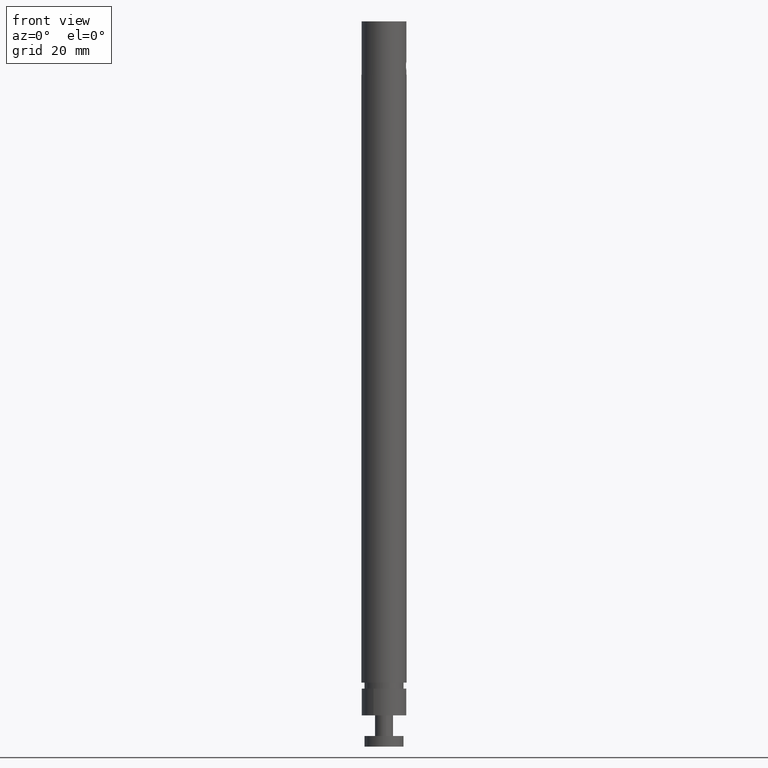
[diagram: clean part render]
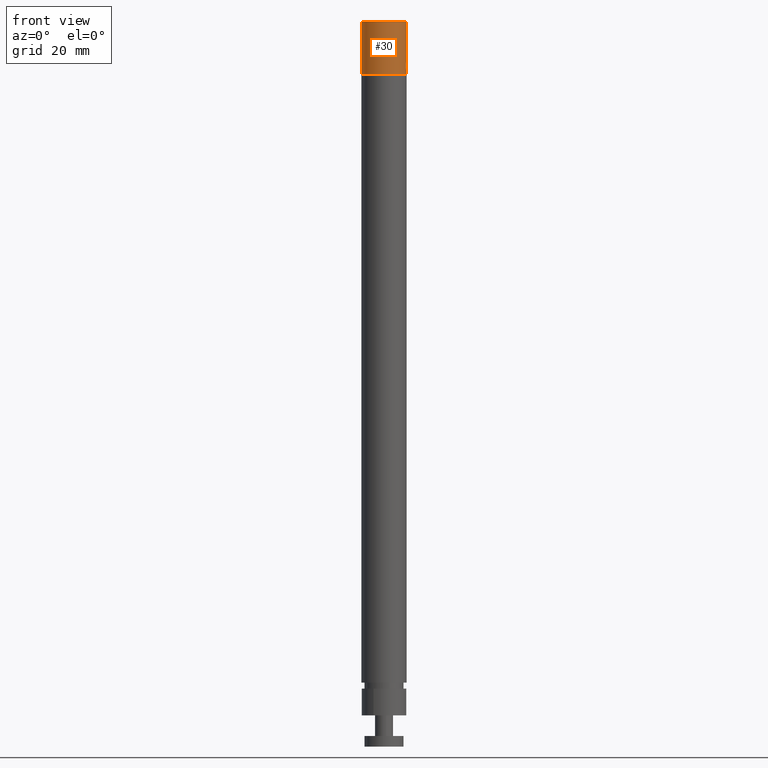
[diagram: same view with one face highlighted and labeled with its STEP entity id]
A machine part, front view. The second image highlights one B-rep face of the part: STEP entity #30.
In plain terms, the highlighted cylindrical surface (edge-blend (fillet) strip) has radius 6.3 mm, axis along (0, 0, 1).
Its self-contained STEP definition (entity closure, byte-faithful):
#25 = ORIENTED_EDGE ( 'NONE', *, *, #106, .T. ) ;
#26 = ORIENTED_EDGE ( 'NONE', *, *, #63, .F. ) ;
#27 = EDGE_CURVE ( 'NONE', #124, #123, #424, .T. ) ;
#28 = ORIENTED_EDGE ( 'NONE', *, *, #27, .T. ) ;
#29 = EDGE_LOOP ( 'NONE', ( #45, #28, #25, #26, #85, #83 ) ) ;
#30 = ADVANCED_FACE ( 'NONE', ( #425 ), #457, .T. ) ;
#44 = EDGE_CURVE ( 'NONE', #51, #54, #517, .T. ) ;
#45 = ORIENTED_EDGE ( 'NONE', *, *, #126, .F. ) ;
#51 = VERTEX_POINT ( 'NONE', #578 ) ;
#54 = VERTEX_POINT ( 'NONE', #572 ) ;
#61 = VERTEX_POINT ( 'NONE', #562 ) ;
#63 = EDGE_CURVE ( 'NONE', #61, #64, #617, .T. ) ;
#64 = VERTEX_POINT ( 'NONE', #616 ) ;
#83 = ORIENTED_EDGE ( 'NONE', *, *, #44, .F. ) ;
#85 = ORIENTED_EDGE ( 'NONE', *, *, #102, .T. ) ;
#102 = EDGE_CURVE ( 'NONE', #61, #54, #802, .T. ) ;
#106 = EDGE_CURVE ( 'NONE', #123, #64, #858, .T. ) ;
#123 = VERTEX_POINT ( 'NONE', #919 ) ;
#124 = VERTEX_POINT ( 'NONE', #918 ) ;
#126 = EDGE_CURVE ( 'NONE', #124, #51, #891, .T. ) ;
#420 = DIRECTION ( 'NONE',  ( -1.000000000000000000, 0.0000000000000000000, 0.0000000000000000000 ) ) ;
#421 = DIRECTION ( 'NONE',  ( 0.0000000000000000000, 0.0000000000000000000, 1.000000000000000000 ) ) ;
#422 = CARTESIAN_POINT ( 'NONE',  ( -1.303146961860192700, -1.638825475584403600, 1.061882583746756000 ) ) ;
#423 = AXIS2_PLACEMENT_3D ( 'NONE', #422, #421, #420 ) ;
#424 = CIRCLE ( 'NONE', #423, 0.2480314960629921300 ) ;
#425 = FACE_OUTER_BOUND ( 'NONE', #29, .T. ) ;
#454 = DIRECTION ( 'NONE',  ( 1.000000000000000000, 0.0000000000000000000, 0.0000000000000000000 ) ) ;
#455 = DIRECTION ( 'NONE',  ( 0.0000000000000000000, 0.0000000000000000000, 1.000000000000000000 ) ) ;
#456 = AXIS2_PLACEMENT_3D ( 'NONE', #460, #455, #454 ) ;
#457 = CYLINDRICAL_SURFACE ( 'NONE', #456, 0.2480314960629921300 ) ;
#460 = CARTESIAN_POINT ( 'NONE',  ( -1.303146961860187600, -1.638825475584408900, 0.8650321900459696500 ) ) ;
#513 = DIRECTION ( 'NONE',  ( 1.000000000000000000, 0.0000000000000000000, 0.0000000000000000000 ) ) ;
#514 = DIRECTION ( 'NONE',  ( 0.0000000000000000000, 0.0000000000000000000, 1.000000000000000000 ) ) ;
#515 = CARTESIAN_POINT ( 'NONE',  ( -1.303146961860187600, -1.638825475584408900, 1.652433764849119000 ) ) ;
#516 = AXIS2_PLACEMENT_3D ( 'NONE', #515, #514, #513 ) ;
#517 = CIRCLE ( 'NONE', #516, 0.2480314960629921300 ) ;
#562 = CARTESIAN_POINT ( 'NONE',  ( -1.055115465797195500, -1.638825475584408900, 1.209520379022346500 ) ) ;
#572 = CARTESIAN_POINT ( 'NONE',  ( -1.055115465797195500, -1.638825475584408900, 1.652433764849119000 ) ) ;
#578 = CARTESIAN_POINT ( 'NONE',  ( -1.551178457923179800, -1.638825475584408900, 1.652433764849119000 ) ) ;
#588 = CARTESIAN_POINT ( 'NONE',  ( -1.055115465797195700, -1.638825475584403600, 1.111095182171954100 ) ) ;
#589 = CARTESIAN_POINT ( 'NONE',  ( -1.055115465797195700, -1.645344396461700300, 1.111095182171954400 ) ) ;
#590 = CARTESIAN_POINT ( 'NONE',  ( -1.055384781450426700, -1.651815905417917600, 1.112409810938025400 ) ) ;
#591 = CARTESIAN_POINT ( 'NONE',  ( -1.056289700387528200, -1.663651707011617500, 1.117335405775081900 ) ) ;
#592 = CARTESIAN_POINT ( 'NONE',  ( -1.056930931889146700, -1.669126198678396100, 1.121005545592844300 ) ) ;
#593 = CARTESIAN_POINT ( 'NONE',  ( -1.058212842130591900, -1.678166856177966100, 1.130057900112345600 ) ) ;
#594 = CARTESIAN_POINT ( 'NONE',  ( -1.058858246634021500, -1.681824641998271400, 1.135521347267647500 ) ) ;
#595 = CARTESIAN_POINT ( 'NONE',  ( -1.059777041859494100, -1.686752365093264500, 1.147411701677925700 ) ) ;
#596 = CARTESIAN_POINT ( 'NONE',  ( -1.060047352952096000, -1.688041359191806400, 1.153834194106194300 ) ) ;
#597 = CARTESIAN_POINT ( 'NONE',  ( -1.060046020308695400, -1.688034776202300000, 1.166831219415040800 ) ) ;
#598 = CARTESIAN_POINT ( 'NONE',  ( -1.059776248407816400, -1.686749312117598500, 1.173230278777337400 ) ) ;
#599 = CARTESIAN_POINT ( 'NONE',  ( -1.058851070262176700, -1.681784940463629600, 1.185170794182953900 ) ) ;
#600 = CARTESIAN_POINT ( 'NONE',  ( -1.058208653177928200, -1.678142902133801000, 1.190592611586354500 ) ) ;
#601 = CARTESIAN_POINT ( 'NONE',  ( -1.056923152623914700, -1.669065694759741800, 1.199659529767160600 ) ) ;
#602 = CARTESIAN_POINT ( 'NONE',  ( -1.056283888062860400, -1.663595368440286900, 1.203313147528787300 ) ) ;
#603 = CARTESIAN_POINT ( 'NONE',  ( -1.055381008323936300, -1.651746662257014500, 1.208224918574999100 ) ) ;
#604 = CARTESIAN_POINT ( 'NONE',  ( -1.055115465797195500, -1.645256283443114800, 1.209520379022345900 ) ) ;
#615 = CARTESIAN_POINT ( 'NONE',  ( -1.055115465797195500, -1.638825475584408900, 1.209520379022346500 ) ) ;
#616 = CARTESIAN_POINT ( 'NONE',  ( -1.055115465797195700, -1.638825475584403600, 1.111095182171954100 ) ) ;
#617 = B_SPLINE_CURVE_WITH_KNOTS ( 'NONE', 3,
 ( #615, #604, #603, #602, #601, #600, #599, #598, #597, #596, #595, #594, #593, #592, #591, #590, #589, #588 ),
 .UNSPECIFIED., .F., .F.,
 ( 4, 2, 2, 2, 2, 2, 2, 2, 4 ),
 ( 0.003917805345165921800, 0.004407404700006025500, 0.004897004054846129300, 0.005386603409686232200, 0.005876202764526336000, 0.006365802119366439700, 0.006855401474206542600, 0.007345000829046646400, 0.007834600183886750200 ),
 .UNSPECIFIED. ) ;
#799 = DIRECTION ( 'NONE',  ( 0.0000000000000000000, 0.0000000000000000000, 1.000000000000000000 ) ) ;
#800 = VECTOR ( 'NONE', #799, 39.37007874015748100 ) ;
#801 = CARTESIAN_POINT ( 'NONE',  ( -1.055115465797195500, -1.638825475584408900, 0.8650321900459696500 ) ) ;
#802 = LINE ( 'NONE', #801, #800 ) ;
#855 = DIRECTION ( 'NONE',  ( 0.0000000000000000000, 0.0000000000000000000, 1.000000000000000000 ) ) ;
#856 = VECTOR ( 'NONE', #855, 39.37007874015748100 ) ;
#857 = CARTESIAN_POINT ( 'NONE',  ( -1.055115465797195500, -1.638825475584408900, 0.8650321900459696500 ) ) ;
#858 = LINE ( 'NONE', #857, #856 ) ;
#888 = DIRECTION ( 'NONE',  ( 0.0000000000000000000, 0.0000000000000000000, 1.000000000000000000 ) ) ;
#889 = VECTOR ( 'NONE', #888, 39.37007874015748100 ) ;
#890 = CARTESIAN_POINT ( 'NONE',  ( -1.551178457923179800, -1.638825475584408900, 0.8650321900459696500 ) ) ;
#891 = LINE ( 'NONE', #890, #889 ) ;
#918 = CARTESIAN_POINT ( 'NONE',  ( -1.551178457923184900, -1.638825475584408900, 1.061882583746756000 ) ) ;
#919 = CARTESIAN_POINT ( 'NONE',  ( -1.055115465797200600, -1.638825475584408900, 1.061882583746756000 ) ) ;